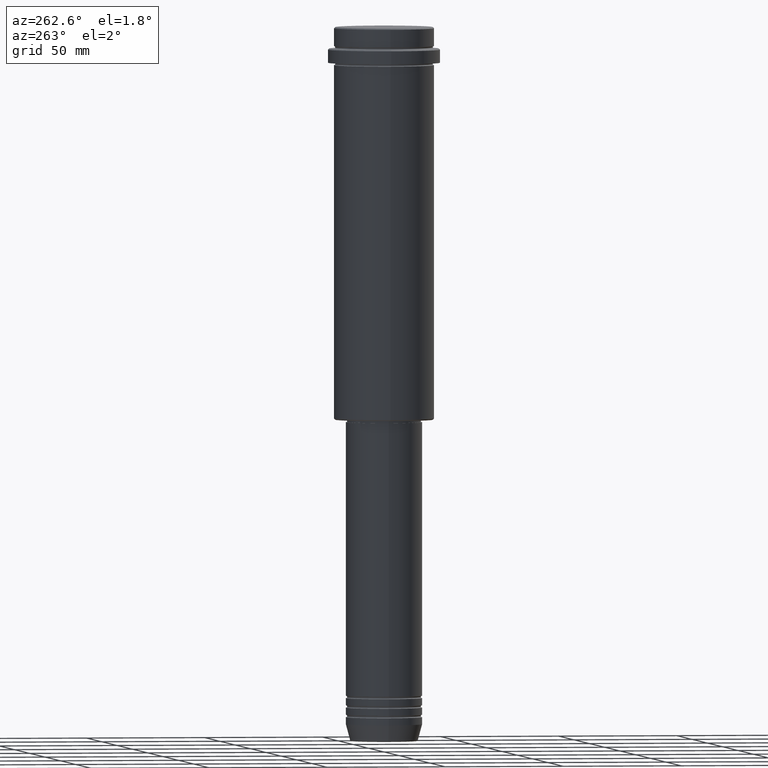
[diagram: clean part render]
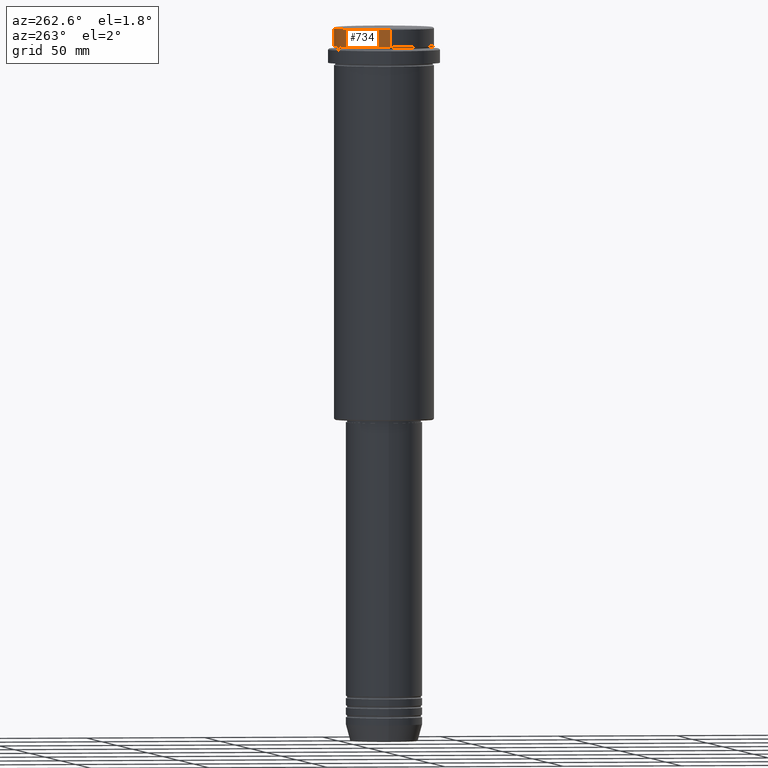
[diagram: same view with one face highlighted and labeled with its STEP entity id]
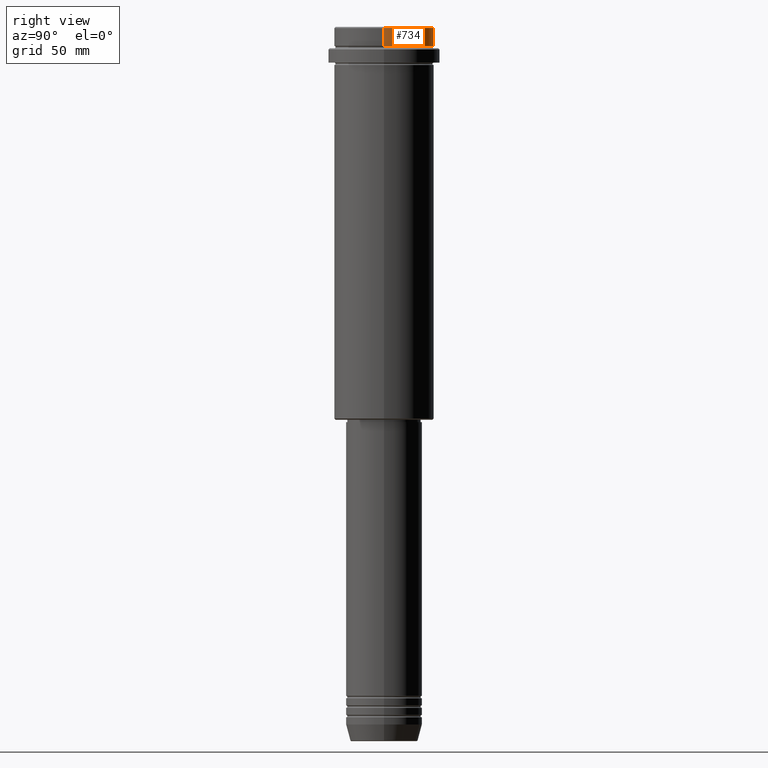
[diagram: same view with one face highlighted and labeled with its STEP entity id]
A machine part, auxiliary view. The second image highlights one B-rep face of the part: STEP entity #734.
A second angle (right view) of the same face is appended — the face is thin or edge-on in the first view.
In plain terms, the highlighted cylindrical surface (partial cylindrical patch) has radius 21 mm, axis along (-0, -0, 1).
Its self-contained STEP definition (entity closure, byte-faithful):
#3 = LINE ( 'NONE', #413, #647 ) ;
#36 = VECTOR ( 'NONE', #1172, 1000.000000000000000 ) ;
#65 = CARTESIAN_POINT ( 'NONE',  ( 20.99999999999999645, 0.000000000000000000, -7.999999999999998224 ) ) ;
#119 = ORIENTED_EDGE ( 'NONE', *, *, #818, .T. ) ;
#141 = VERTEX_POINT ( 'NONE', #1125 ) ;
#252 = CARTESIAN_POINT ( 'NONE',  ( -20.99999999999999645, 2.571758278209441267E-15, -7.999999999999998224 ) ) ;
#385 = EDGE_CURVE ( 'NONE', #1210, #141, #3, .T. ) ;
#413 = CARTESIAN_POINT ( 'NONE',  ( 20.99999999999999645, 0.000000000000000000, 0.000000000000000000 ) ) ;
#447 = DIRECTION ( 'NONE',  ( -0.000000000000000000, -0.000000000000000000, 1.000000000000000000 ) ) ;
#476 = DIRECTION ( 'NONE',  ( 0.000000000000000000, 0.000000000000000000, -1.000000000000000000 ) ) ;
#505 = CARTESIAN_POINT ( 'NONE',  ( -20.99999999999999645, 2.571758278209441267E-15, 0.000000000000000000 ) ) ;
#534 = ORIENTED_EDGE ( 'NONE', *, *, #385, .F. ) ;
#647 = VECTOR ( 'NONE', #1191, 1000.000000000000000 ) ;
#691 = CARTESIAN_POINT ( 'NONE',  ( 0.000000000000000000, 0.000000000000000000, 0.000000000000000000 ) ) ;
#725 = LINE ( 'NONE', #505, #36 ) ;
#734 = ADVANCED_FACE ( 'NONE', ( #1359 ), #807, .T. ) ;
#803 = CARTESIAN_POINT ( 'NONE',  ( -20.99999999999999645, 2.571758278209441267E-15, -0.5000000000000073275 ) ) ;
#807 = CYLINDRICAL_SURFACE ( 'NONE', #1166, 20.99999999999999645 ) ;
#818 = EDGE_CURVE ( 'NONE', #1024, #904, #725, .T. ) ;
#900 = EDGE_CURVE ( 'NONE', #904, #141, #1143, .T. ) ;
#904 = VERTEX_POINT ( 'NONE', #803 ) ;
#905 = AXIS2_PLACEMENT_3D ( 'NONE', #1243, #447, #1027 ) ;
#974 = CIRCLE ( 'NONE', #905, 20.99999999999999645 ) ;
#1016 = EDGE_CURVE ( 'NONE', #1210, #1024, #974, .T. ) ;
#1024 = VERTEX_POINT ( 'NONE', #252 ) ;
#1027 = DIRECTION ( 'NONE',  ( 1.000000000000000000, 0.000000000000000000, 0.000000000000000000 ) ) ;
#1057 = CARTESIAN_POINT ( 'NONE',  ( 0.000000000000000000, 0.000000000000000000, -0.5000000000000073275 ) ) ;
#1125 = CARTESIAN_POINT ( 'NONE',  ( 20.99999999999999645, 0.000000000000000000, -0.5000000000000073275 ) ) ;
#1143 = CIRCLE ( 'NONE', #1254, 20.99999999999999645 ) ;
#1145 = EDGE_LOOP ( 'NONE', ( #1174, #119, #1296, #534 ) ) ;
#1166 = AXIS2_PLACEMENT_3D ( 'NONE', #691, #1351, #1245 ) ;
#1172 = DIRECTION ( 'NONE',  ( -0.000000000000000000, -0.000000000000000000, 1.000000000000000000 ) ) ;
#1174 = ORIENTED_EDGE ( 'NONE', *, *, #1016, .T. ) ;
#1191 = DIRECTION ( 'NONE',  ( -0.000000000000000000, -0.000000000000000000, 1.000000000000000000 ) ) ;
#1210 = VERTEX_POINT ( 'NONE', #65 ) ;
#1243 = CARTESIAN_POINT ( 'NONE',  ( 0.000000000000000000, 0.000000000000000000, -7.999999999999998224 ) ) ;
#1245 = DIRECTION ( 'NONE',  ( 1.000000000000000000, 0.000000000000000000, 0.000000000000000000 ) ) ;
#1254 = AXIS2_PLACEMENT_3D ( 'NONE', #1057, #476, #1347 ) ;
#1296 = ORIENTED_EDGE ( 'NONE', *, *, #900, .T. ) ;
#1347 = DIRECTION ( 'NONE',  ( 1.000000000000000000, 0.000000000000000000, 0.000000000000000000 ) ) ;
#1351 = DIRECTION ( 'NONE',  ( -0.000000000000000000, -0.000000000000000000, 1.000000000000000000 ) ) ;
#1359 = FACE_OUTER_BOUND ( 'NONE', #1145, .T. ) ;